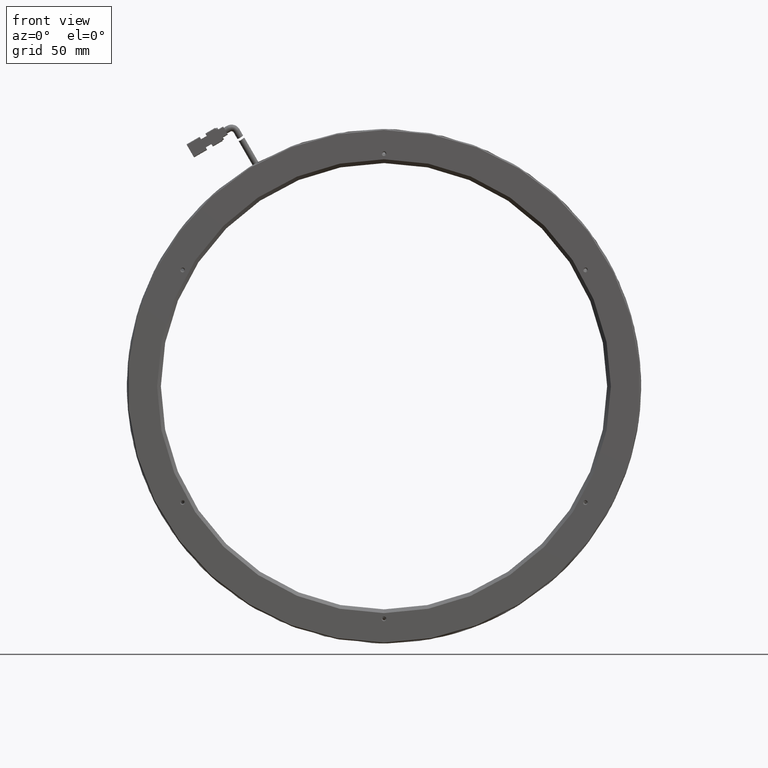
[diagram: clean part render]
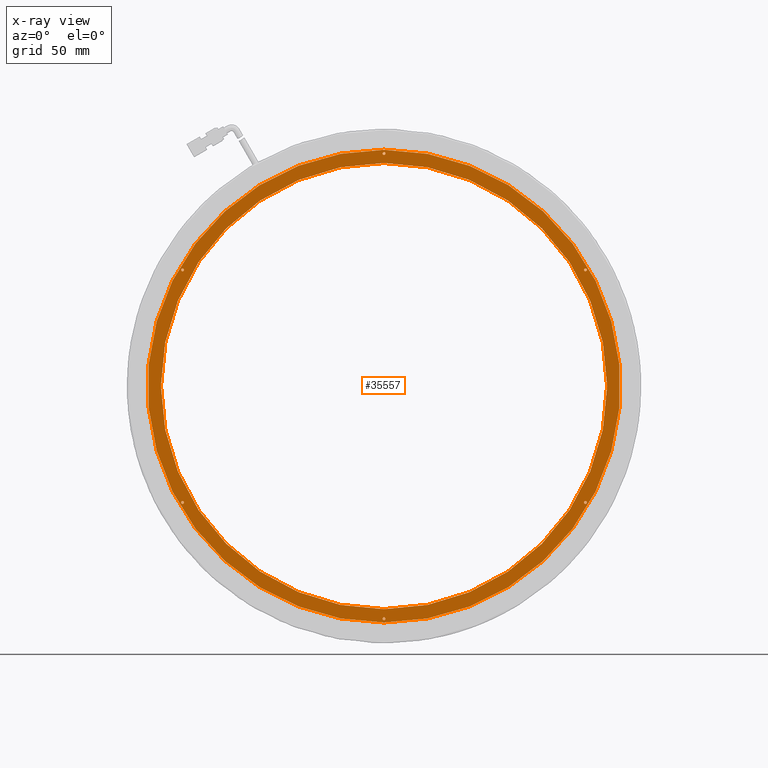
[diagram: x-ray — body ghosted, one internal face saturated and labeled with its STEP entity id]
A machine part, front view, then the same camera in x-ray: the body is ghosted and one INTERNAL B-rep face — a face not visible from any outside direction — is saturated and labeled: STEP entity #35557.
In plain terms, the highlighted planar face has unit normal (0, 1, 0).
Its self-contained STEP definition (entity closure, byte-faithful):
#1700 = DIRECTION ( 'NONE',  ( 0.0000000000000000000, 0.0000000000000000000, -1.000000000000000000 ) ) ;
#1896 = DIRECTION ( 'NONE',  ( 0.0000000000000000000, -1.000000000000000000, 0.0000000000000000000 ) ) ;
#2286 = FACE_BOUND ( 'NONE', #33260, .T. ) ;
#2489 = DIRECTION ( 'NONE',  ( 0.0000000000000000000, 0.0000000000000000000, -1.000000000000000000 ) ) ;
#2766 = VERTEX_POINT ( 'NONE', #19742 ) ;
#4048 = DIRECTION ( 'NONE',  ( 0.0000000000000000000, -1.000000000000000000, 0.0000000000000000000 ) ) ;
#4590 = PLANE ( 'NONE',  #26214 ) ;
#4955 = DIRECTION ( 'NONE',  ( 0.0000000000000000000, -1.000000000000000000, 0.0000000000000000000 ) ) ;
#5536 = FACE_BOUND ( 'NONE', #88817, .T. ) ;
#5771 = VERTEX_POINT ( 'NONE', #132782 ) ;
#6493 = DIRECTION ( 'NONE',  ( 0.0000000000000000000, -1.000000000000000000, 0.0000000000000000000 ) ) ;
#7384 = ORIENTED_EDGE ( 'NONE', *, *, #81373, .T. ) ;
#8076 = EDGE_CURVE ( 'NONE', #2766, #122939, #131827, .T. ) ;
#9109 = DIRECTION ( 'NONE',  ( 0.0000000000000000000, 0.0000000000000000000, -1.000000000000000000 ) ) ;
#10507 = CARTESIAN_POINT ( 'NONE',  ( -23.30300868215377700, 1.933023485320397400, 118.0000000000000100 ) ) ;
#10689 = ORIENTED_EDGE ( 'NONE', *, *, #65661, .T. ) ;
#11317 = ORIENTED_EDGE ( 'NONE', *, *, #118930, .T. ) ;
#11323 = ORIENTED_EDGE ( 'NONE', *, *, #8076, .T. ) ;
#12179 = FACE_BOUND ( 'NONE', #131591, .T. ) ;
#12253 = CARTESIAN_POINT ( 'NONE',  ( -129.8241333476403300, 1.933023485288069200, 60.74928384464328700 ) ) ;
#17154 = EDGE_LOOP ( 'NONE', ( #28717, #48446 ) ) ;
#17447 = AXIS2_PLACEMENT_3D ( 'NONE', #55345, #128286, #65760 ) ;
#18315 = EDGE_LOOP ( 'NONE', ( #11317, #88701 ) ) ;
#18425 = CARTESIAN_POINT ( 'NONE',  ( -23.30300868215379100, 1.933023485320397400, 0.0000000000000000000 ) ) ;
#18454 = CIRCLE ( 'NONE', #28993, 0.7507161553474071000 ) ;
#19742 = CARTESIAN_POINT ( 'NONE',  ( -129.8241333476390500, 1.933023485299532300, -62.25071615534716300 ) ) ;
#20583 = DIRECTION ( 'NONE',  ( 0.0000000000000000000, -1.000000000000000000, 0.0000000000000000000 ) ) ;
#20907 = CARTESIAN_POINT ( 'NONE',  ( -23.30300868215379100, 1.933023485379065800, -122.2492838446860300 ) ) ;
#21620 = CARTESIAN_POINT ( 'NONE',  ( 83.21811598333231100, 1.933023485288069200, -61.49999999999975800 ) ) ;
#22405 = CARTESIAN_POINT ( 'NONE',  ( -129.8241333476403300, 1.933023485288069200, 61.49999999999900500 ) ) ;
#23015 = AXIS2_PLACEMENT_3D ( 'NONE', #66441, #4048, #76848 ) ;
#24685 = EDGE_CURVE ( 'NONE', #107534, #133422, #36171, .T. ) ;
#26214 = AXIS2_PLACEMENT_3D ( 'NONE', #56968, #129950, #67436 ) ;
#26773 = CARTESIAN_POINT ( 'NONE',  ( 83.21811598333189900, 1.933023485288069200, 61.50000000000050400 ) ) ;
#28717 = ORIENTED_EDGE ( 'NONE', *, *, #107714, .T. ) ;
#28919 = DIRECTION ( 'NONE',  ( 0.0000000000000000000, 0.0000000000000000000, -1.000000000000000000 ) ) ;
#28993 = AXIS2_PLACEMENT_3D ( 'NONE', #133968, #71473, #9109 ) ;
#29056 = DIRECTION ( 'NONE',  ( -0.0000000000000000000, 1.000000000000000000, -0.0000000000000000000 ) ) ;
#30021 = FACE_BOUND ( 'NONE', #58064, .T. ) ;
#32095 = DIRECTION ( 'NONE',  ( 0.0000000000000000000, 0.0000000000000000000, -1.000000000000000000 ) ) ;
#32885 = DIRECTION ( 'NONE',  ( 0.0000000000000000000, 0.0000000000000000000, -1.000000000000000000 ) ) ;
#33260 = EDGE_LOOP ( 'NONE', ( #83314, #88163 ) ) ;
#35557 = ADVANCED_FACE ( 'NONE', ( #113072, #2286, #30021, #5536, #109835, #12179, #82039, #54443 ), #4590, .T. ) ;
#35713 = CARTESIAN_POINT ( 'NONE',  ( -23.30300868215464800, 1.933023485288069200, 122.2492838447237800 ) ) ;
#36171 = CIRCLE ( 'NONE', #52459, 0.7507161553474071000 ) ;
#36915 = CARTESIAN_POINT ( 'NONE',  ( 83.21811598333189900, 1.933023485288069200, 61.50000000000050400 ) ) ;
#37269 = DIRECTION ( 'NONE',  ( 0.0000000000000000000, 0.0000000000000000000, -1.000000000000000000 ) ) ;
#37772 = AXIS2_PLACEMENT_3D ( 'NONE', #22405, #95249, #32885 ) ;
#37968 = CIRCLE ( 'NONE', #110415, 118.0000000000000100 ) ;
#39917 = CARTESIAN_POINT ( 'NONE',  ( 83.21811598333189900, 1.933023485288069200, 62.25071615535772200 ) ) ;
#41529 = EDGE_CURVE ( 'NONE', #67431, #99516, #105735, .T. ) ;
#41786 = CIRCLE ( 'NONE', #103208, 0.7507161553572185800 ) ;
#42394 = AXIS2_PLACEMENT_3D ( 'NONE', #67354, #4955, #77767 ) ;
#43028 = VERTEX_POINT ( 'NONE', #81180 ) ;
#47373 = DIRECTION ( 'NONE',  ( 0.0000000000000000000, 0.0000000000000000000, -1.000000000000000000 ) ) ;
#47879 = EDGE_CURVE ( 'NONE', #117239, #5771, #57831, .T. ) ;
#48446 = ORIENTED_EDGE ( 'NONE', *, *, #53128, .T. ) ;
#48713 = CARTESIAN_POINT ( 'NONE',  ( -23.30300868215379100, 1.933023485320397400, 125.0000000000000000 ) ) ;
#51484 = DIRECTION ( 'NONE',  ( 0.0000000000000000000, -1.000000000000000000, 0.0000000000000000000 ) ) ;
#52459 = AXIS2_PLACEMENT_3D ( 'NONE', #21620, #94454, #32095 ) ;
#53128 = EDGE_CURVE ( 'NONE', #116845, #127273, #67854, .T. ) ;
#53351 = VERTEX_POINT ( 'NONE', #120414 ) ;
#53654 = EDGE_CURVE ( 'NONE', #86931, #122852, #106855, .T. ) ;
#53693 = AXIS2_PLACEMENT_3D ( 'NONE', #126578, #64108, #1700 ) ;
#53871 = CARTESIAN_POINT ( 'NONE',  ( -23.30300868215377700, 1.933023485320397400, -125.0000000000000000 ) ) ;
#54443 = FACE_BOUND ( 'NONE', #130015, .T. ) ;
#55345 = CARTESIAN_POINT ( 'NONE',  ( -23.30300868215379100, 1.933023485320397400, 0.0000000000000000000 ) ) ;
#56968 = CARTESIAN_POINT ( 'NONE',  ( -23.30300868215379100, 1.933023485320397400, 0.0000000000000000000 ) ) ;
#57278 = AXIS2_PLACEMENT_3D ( 'NONE', #68847, #6493, #79306 ) ;
#57831 = CIRCLE ( 'NONE', #59165, 118.0000000000000100 ) ;
#58064 = EDGE_LOOP ( 'NONE', ( #85809, #126581 ) ) ;
#59165 = AXIS2_PLACEMENT_3D ( 'NONE', #18425, #91292, #28919 ) ;
#59773 = EDGE_LOOP ( 'NONE', ( #98765, #64984 ) ) ;
#61308 = CARTESIAN_POINT ( 'NONE',  ( -129.8241333476403300, 1.933023485288069200, 62.25071615535472300 ) ) ;
#61642 = AXIS2_PLACEMENT_3D ( 'NONE', #36915, #109702, #47373 ) ;
#64108 = DIRECTION ( 'NONE',  ( 0.0000000000000000000, -1.000000000000000000, 0.0000000000000000000 ) ) ;
#64301 = CARTESIAN_POINT ( 'NONE',  ( -23.30300868215379100, 1.933023485379065800, -123.0000000000000000 ) ) ;
#64873 = DIRECTION ( 'NONE',  ( -0.0000000000000000000, -1.000000000000000000, -0.0000000000000000000 ) ) ;
#64984 = ORIENTED_EDGE ( 'NONE', *, *, #109074, .T. ) ;
#65483 = ORIENTED_EDGE ( 'NONE', *, *, #41529, .T. ) ;
#65661 = EDGE_CURVE ( 'NONE', #99516, #67431, #118382, .T. ) ;
#65760 = DIRECTION ( 'NONE',  ( 0.0000000000000000000, 0.0000000000000000000, 1.000000000000000000 ) ) ;
#66324 = CARTESIAN_POINT ( 'NONE',  ( -129.8241333476390500, 1.933023485299532300, -60.74928384465533100 ) ) ;
#66441 = CARTESIAN_POINT ( 'NONE',  ( -129.8241333476390500, 1.933023485299532300, -61.50000000000125100 ) ) ;
#67354 = CARTESIAN_POINT ( 'NONE',  ( -129.8241333476390500, 1.933023485299532300, -61.50000000000125100 ) ) ;
#67431 = VERTEX_POINT ( 'NONE', #20907 ) ;
#67436 = DIRECTION ( 'NONE',  ( 0.0000000000000000000, -0.0000000000000000000, 1.000000000000000000 ) ) ;
#67478 = AXIS2_PLACEMENT_3D ( 'NONE', #64301, #1896, #74741 ) ;
#67854 = CIRCLE ( 'NONE', #75937, 125.0000000000000000 ) ;
#68847 = CARTESIAN_POINT ( 'NONE',  ( -129.8241333476403300, 1.933023485288069200, 61.49999999999900500 ) ) ;
#69928 = VERTEX_POINT ( 'NONE', #39917 ) ;
#71473 = DIRECTION ( 'NONE',  ( 0.0000000000000000000, -1.000000000000000000, 0.0000000000000000000 ) ) ;
#71652 = AXIS2_PLACEMENT_3D ( 'NONE', #113838, #51484, #124396 ) ;
#73388 = CIRCLE ( 'NONE', #42394, 0.7507161553459151800 ) ;
#73638 = VERTEX_POINT ( 'NONE', #35713 ) ;
#74741 = DIRECTION ( 'NONE',  ( 0.0000000000000000000, 0.0000000000000000000, -1.000000000000000000 ) ) ;
#75937 = AXIS2_PLACEMENT_3D ( 'NONE', #91423, #29056, #101882 ) ;
#76848 = DIRECTION ( 'NONE',  ( 0.0000000000000000000, 0.0000000000000000000, -1.000000000000000000 ) ) ;
#77767 = DIRECTION ( 'NONE',  ( 0.0000000000000000000, 0.0000000000000000000, -1.000000000000000000 ) ) ;
#78866 = CARTESIAN_POINT ( 'NONE',  ( -23.30300868215379100, 1.933023485379065800, -123.7507161553139700 ) ) ;
#79306 = DIRECTION ( 'NONE',  ( 0.0000000000000000000, 0.0000000000000000000, -1.000000000000000000 ) ) ;
#81180 = CARTESIAN_POINT ( 'NONE',  ( 83.21811598333189900, 1.933023485288069200, 60.74928384464328700 ) ) ;
#81373 = EDGE_CURVE ( 'NONE', #122852, #86931, #107752, .T. ) ;
#82039 = FACE_BOUND ( 'NONE', #59773, .T. ) ;
#82172 = CARTESIAN_POINT ( 'NONE',  ( 83.21811598333231100, 1.933023485288069200, -60.74928384465234600 ) ) ;
#82915 = CARTESIAN_POINT ( 'NONE',  ( -23.30300868215379100, 1.933023485379065800, -123.0000000000000000 ) ) ;
#83314 = ORIENTED_EDGE ( 'NONE', *, *, #96829, .T. ) ;
#85809 = ORIENTED_EDGE ( 'NONE', *, *, #98654, .T. ) ;
#86931 = VERTEX_POINT ( 'NONE', #61308 ) ;
#88163 = ORIENTED_EDGE ( 'NONE', *, *, #24685, .T. ) ;
#88701 = ORIENTED_EDGE ( 'NONE', *, *, #47879, .T. ) ;
#88817 = EDGE_LOOP ( 'NONE', ( #11323, #122234 ) ) ;
#90833 = EDGE_CURVE ( 'NONE', #43028, #69928, #115646, .T. ) ;
#91292 = DIRECTION ( 'NONE',  ( -0.0000000000000000000, -1.000000000000000000, -0.0000000000000000000 ) ) ;
#91423 = CARTESIAN_POINT ( 'NONE',  ( -23.30300868215379100, 1.933023485320397400, 0.0000000000000000000 ) ) ;
#93429 = DIRECTION ( 'NONE',  ( 0.0000000000000000000, 0.0000000000000000000, -1.000000000000000000 ) ) ;
#94454 = DIRECTION ( 'NONE',  ( 0.0000000000000000000, -1.000000000000000000, 0.0000000000000000000 ) ) ;
#94626 = AXIS2_PLACEMENT_3D ( 'NONE', #82915, #20583, #93429 ) ;
#95249 = DIRECTION ( 'NONE',  ( 0.0000000000000000000, -1.000000000000000000, 0.0000000000000000000 ) ) ;
#96829 = EDGE_CURVE ( 'NONE', #133422, #107534, #18454, .T. ) ;
#98654 = EDGE_CURVE ( 'NONE', #73638, #53351, #116853, .T. ) ;
#98765 = ORIENTED_EDGE ( 'NONE', *, *, #90833, .T. ) ;
#99516 = VERTEX_POINT ( 'NONE', #78866 ) ;
#99639 = DIRECTION ( 'NONE',  ( 0.0000000000000000000, -1.000000000000000000, 0.0000000000000000000 ) ) ;
#99987 = CARTESIAN_POINT ( 'NONE',  ( 83.21811598333231100, 1.933023485288069200, -62.25071615534716300 ) ) ;
#101882 = DIRECTION ( 'NONE',  ( 0.0000000000000000000, 0.0000000000000000000, 1.000000000000000000 ) ) ;
#103208 = AXIS2_PLACEMENT_3D ( 'NONE', #26773, #99639, #37269 ) ;
#105735 = CIRCLE ( 'NONE', #67478, 0.7507161553139685100 ) ;
#106855 = CIRCLE ( 'NONE', #37772, 0.7507161553557197800 ) ;
#107359 = CIRCLE ( 'NONE', #71652, 0.7507161552762209300 ) ;
#107534 = VERTEX_POINT ( 'NONE', #82172 ) ;
#107714 = EDGE_CURVE ( 'NONE', #127273, #116845, #127529, .T. ) ;
#107752 = CIRCLE ( 'NONE', #57278, 0.7507161553557197800 ) ;
#108521 = EDGE_CURVE ( 'NONE', #53351, #73638, #107359, .T. ) ;
#109074 = EDGE_CURVE ( 'NONE', #69928, #43028, #41786, .T. ) ;
#109702 = DIRECTION ( 'NONE',  ( 0.0000000000000000000, -1.000000000000000000, 0.0000000000000000000 ) ) ;
#109835 = FACE_OUTER_BOUND ( 'NONE', #17154, .T. ) ;
#110415 = AXIS2_PLACEMENT_3D ( 'NONE', #127354, #64873, #2489 ) ;
#113072 = FACE_BOUND ( 'NONE', #18315, .T. ) ;
#113838 = CARTESIAN_POINT ( 'NONE',  ( -23.30300868215464800, 1.933023485288069200, 123.0000000000000000 ) ) ;
#115646 = CIRCLE ( 'NONE', #61642, 0.7507161553572185800 ) ;
#116845 = VERTEX_POINT ( 'NONE', #53871 ) ;
#116853 = CIRCLE ( 'NONE', #53693, 0.7507161552762209300 ) ;
#117239 = VERTEX_POINT ( 'NONE', #10507 ) ;
#118382 = CIRCLE ( 'NONE', #94626, 0.7507161553139685100 ) ;
#118930 = EDGE_CURVE ( 'NONE', #5771, #117239, #37968, .T. ) ;
#120414 = CARTESIAN_POINT ( 'NONE',  ( -23.30300868215464800, 1.933023485288069200, 123.7507161552762200 ) ) ;
#122234 = ORIENTED_EDGE ( 'NONE', *, *, #127123, .T. ) ;
#122852 = VERTEX_POINT ( 'NONE', #12253 ) ;
#122939 = VERTEX_POINT ( 'NONE', #66324 ) ;
#124396 = DIRECTION ( 'NONE',  ( 0.0000000000000000000, 0.0000000000000000000, -1.000000000000000000 ) ) ;
#126578 = CARTESIAN_POINT ( 'NONE',  ( -23.30300868215464800, 1.933023485288069200, 123.0000000000000000 ) ) ;
#126581 = ORIENTED_EDGE ( 'NONE', *, *, #108521, .T. ) ;
#127123 = EDGE_CURVE ( 'NONE', #122939, #2766, #73388, .T. ) ;
#127273 = VERTEX_POINT ( 'NONE', #48713 ) ;
#127354 = CARTESIAN_POINT ( 'NONE',  ( -23.30300868215379100, 1.933023485320397400, 0.0000000000000000000 ) ) ;
#127529 = CIRCLE ( 'NONE', #17447, 125.0000000000000000 ) ;
#128286 = DIRECTION ( 'NONE',  ( -0.0000000000000000000, 1.000000000000000000, -0.0000000000000000000 ) ) ;
#129950 = DIRECTION ( 'NONE',  ( 0.0000000000000000000, 1.000000000000000000, 0.0000000000000000000 ) ) ;
#130015 = EDGE_LOOP ( 'NONE', ( #10689, #65483 ) ) ;
#131591 = EDGE_LOOP ( 'NONE', ( #7384, #134221 ) ) ;
#131827 = CIRCLE ( 'NONE', #23015, 0.7507161553459151800 ) ;
#132782 = CARTESIAN_POINT ( 'NONE',  ( -23.30300868215379100, 1.933023485320397400, -118.0000000000000100 ) ) ;
#133422 = VERTEX_POINT ( 'NONE', #99987 ) ;
#133968 = CARTESIAN_POINT ( 'NONE',  ( 83.21811598333231100, 1.933023485288069200, -61.49999999999975800 ) ) ;
#134221 = ORIENTED_EDGE ( 'NONE', *, *, #53654, .T. ) ;